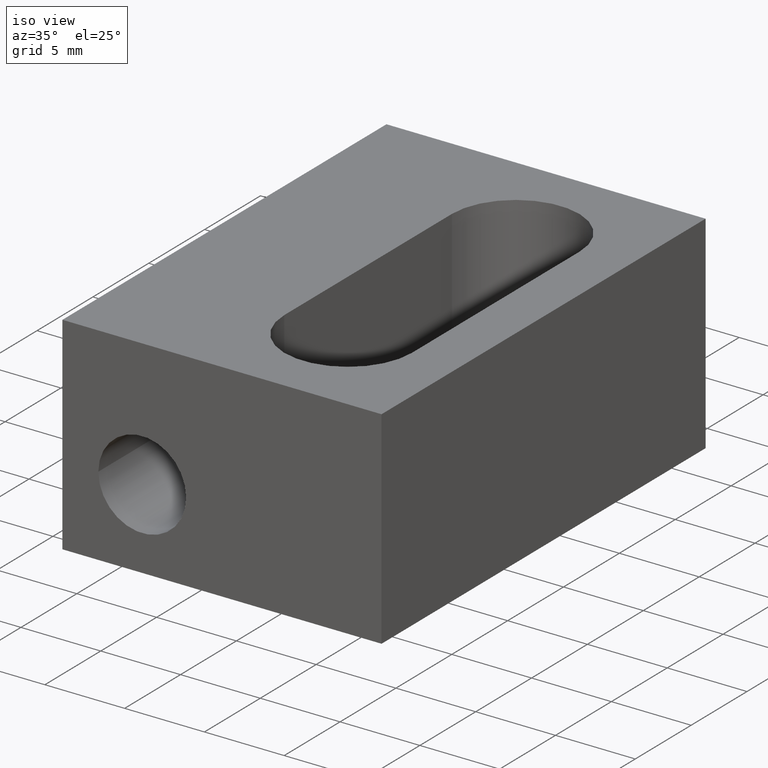
[diagram: clean part render]
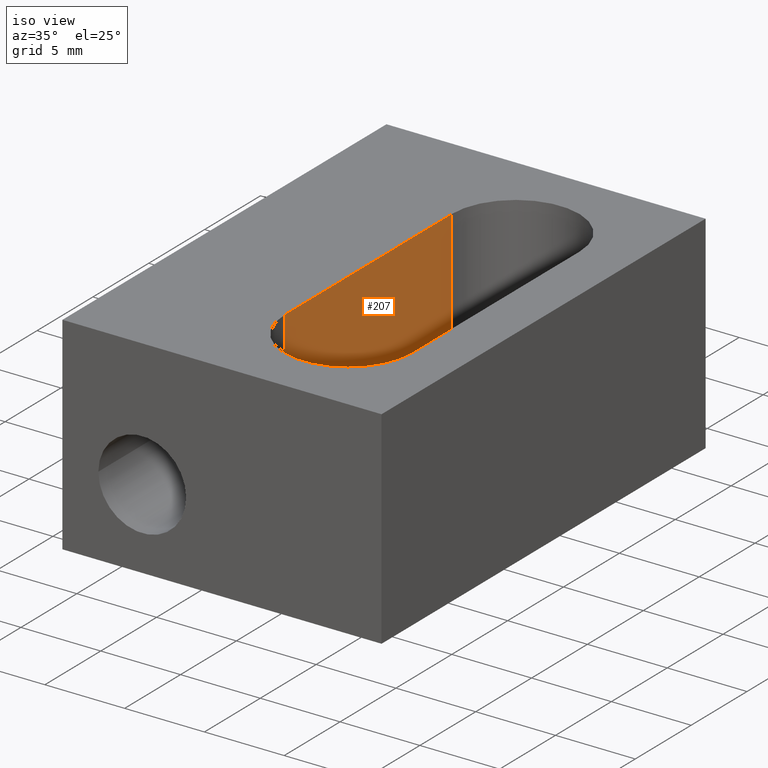
[diagram: same view with one face highlighted and labeled with its STEP entity id]
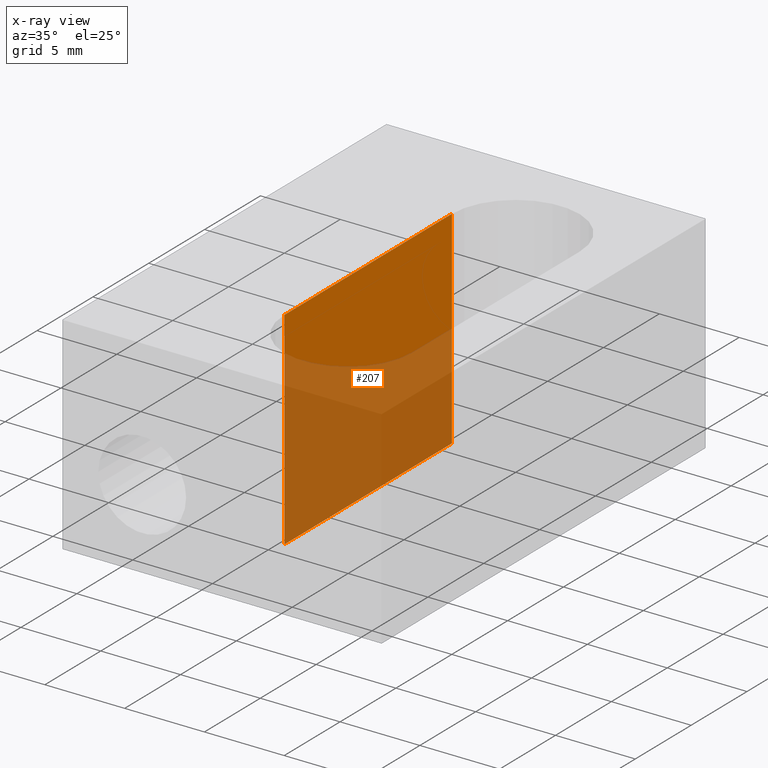
[diagram: x-ray of the same camera — body ghosted, the highlighted face saturated]
A machine part, iso view. The second image highlights one B-rep face of the part: STEP entity #207.
The next image is the same camera in x-ray: the body ghosted, the highlighted face saturated — about 60% of this face is hidden behind the body in this view.
In plain terms, the highlighted planar face has unit normal (1, 0, 0).
Its self-contained STEP definition (entity closure, byte-faithful):
#36=FACE_OUTER_BOUND('',#51,.T.);
#51=EDGE_LOOP('',(#178,#179,#180,#181));
#69=LINE('',#323,#89);
#70=LINE('',#327,#90);
#72=LINE('',#334,#92);
#74=LINE('',#337,#94);
#89=VECTOR('',#263,14.99999999994);
#90=VECTOR('',#266,14.99999999994);
#92=VECTOR('',#274,13.);
#94=VECTOR('',#278,13.);
#107=VERTEX_POINT('',#317);
#109=VERTEX_POINT('',#321);
#110=VERTEX_POINT('',#325);
#111=VERTEX_POINT('',#326);
#131=EDGE_CURVE('',#107,#109,#69,.T.);
#132=EDGE_CURVE('',#110,#111,#70,.T.);
#136=EDGE_CURVE('',#107,#110,#72,.T.);
#138=EDGE_CURVE('',#109,#111,#74,.T.);
#178=ORIENTED_EDGE('',*,*,#136,.F.);
#179=ORIENTED_EDGE('',*,*,#131,.T.);
#180=ORIENTED_EDGE('',*,*,#138,.T.);
#181=ORIENTED_EDGE('',*,*,#132,.F.);
#198=PLANE('',#226);
#207=ADVANCED_FACE('',(#36),#198,.T.);
#226=AXIS2_PLACEMENT_3D('',#336,#276,#277);
#263=DIRECTION('',(0.,-1.,0.));
#266=DIRECTION('',(0.,-1.,0.));
#274=DIRECTION('',(0.,0.,-1.));
#276=DIRECTION('center_axis',(1.,0.,0.));
#277=DIRECTION('ref_axis',(0.,0.,-1.));
#278=DIRECTION('',(0.,0.,-1.));
#317=CARTESIAN_POINT('',(-3.99999999998409,14.99999999994,13.));
#321=CARTESIAN_POINT('',(-3.99999999998409,0.,13.));
#323=CARTESIAN_POINT('',(-3.99999999998409,14.99999999994,13.));
#325=CARTESIAN_POINT('',(-3.99999999998409,14.99999999994,0.));
#326=CARTESIAN_POINT('',(-3.99999999998409,0.,0.));
#327=CARTESIAN_POINT('',(-3.99999999998409,14.99999999994,0.));
#334=CARTESIAN_POINT('',(-3.99999999998409,14.99999999994,13.));
#336=CARTESIAN_POINT('Origin',(-3.99999999998409,14.99999999994,13.));
#337=CARTESIAN_POINT('',(-3.99999999998409,0.,13.));